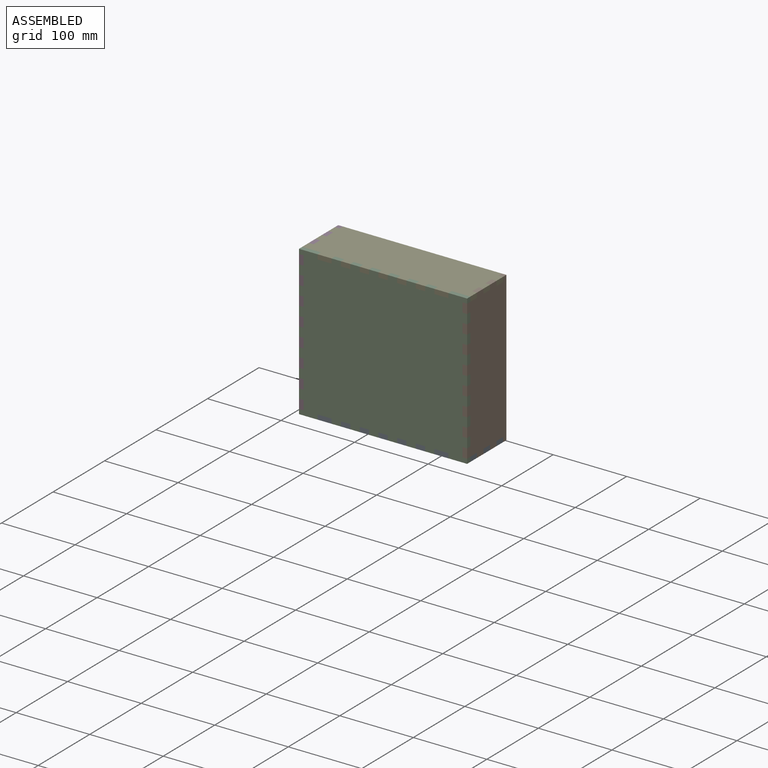
[diagram: assembled view]
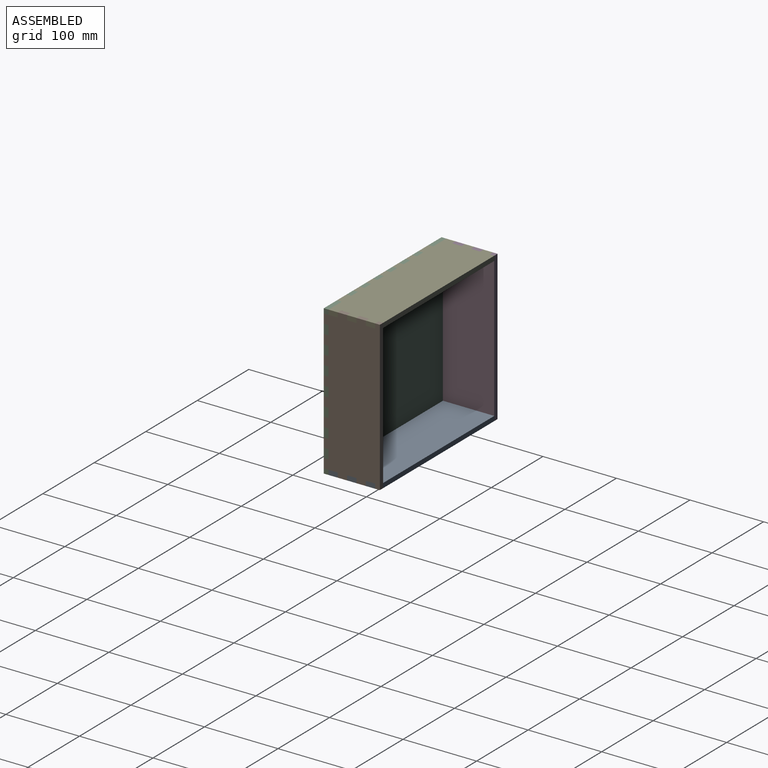
[diagram: assembled view, second angle]
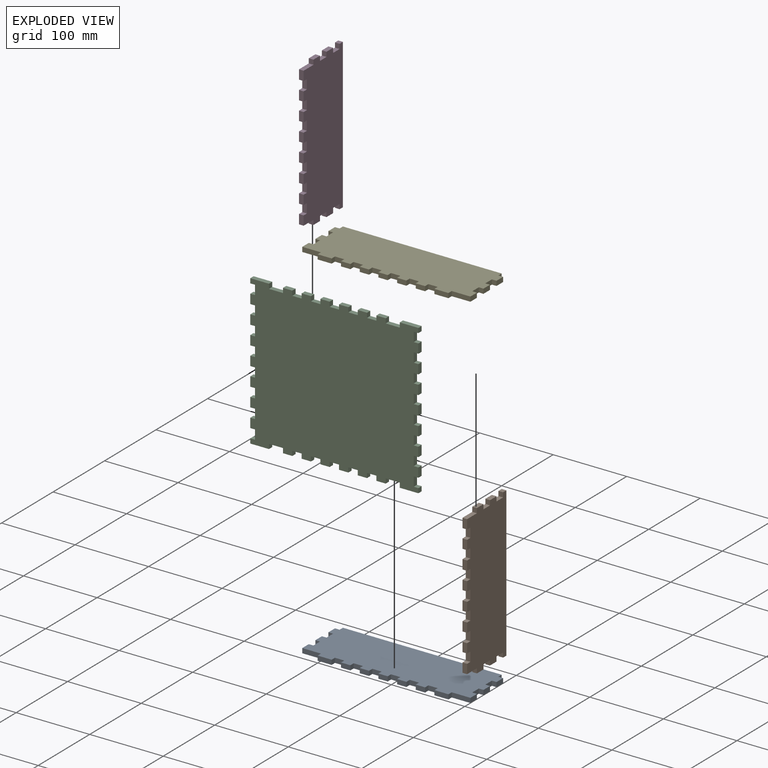
[diagram: exploded view]
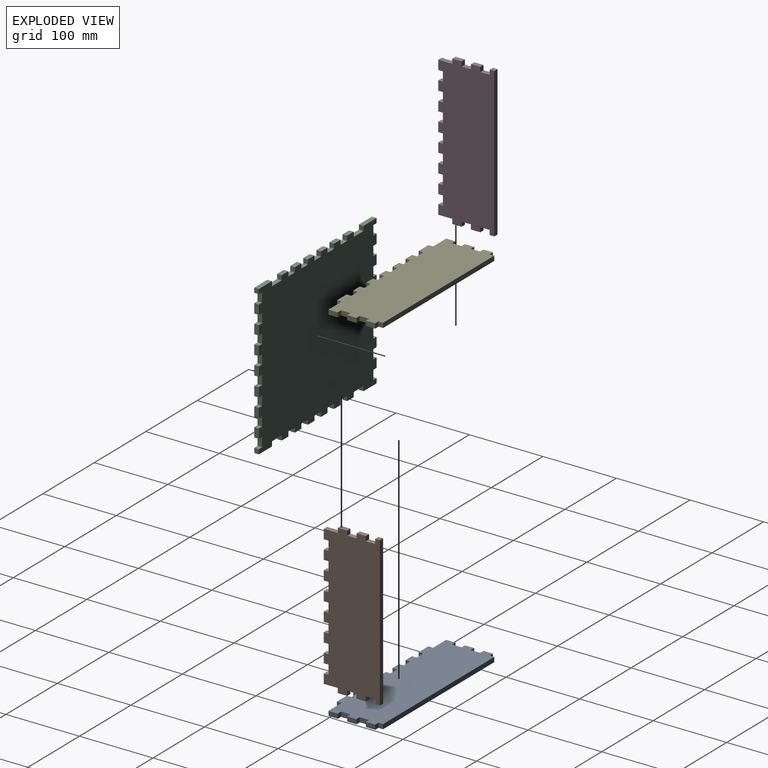
[diagram: exploded view, second angle]
ASSEMBLY  parts=5 mates=4
PART A: 54 faces, bbox 228.6x76.2x6.4 mm
  f0: plane 6.35x6.35mm, normal (1,0,0), area 40.3mm2, adj f1,f51,f52,f53
  f1: plane 25.4x6.35mm, normal (0,-1,0), area 161.3mm2, adj f0,f2,f52,f53
  f2: plane 12.7x6.35mm, normal (1,0,0), area 80.6mm2, adj f1,f3,f52,f53
  f3: plane 6.35x6.35mm, normal (0,1,0), area 40.3mm2, adj f2,f4,f52,f53
  f4: plane 12.7x6.35mm, normal (1,0,0), area 80.6mm2, adj f3,f5,f52,f53
  f5: plane 6.35x6.35mm, normal (0,-1,0), area 40.3mm2, adj f4,f6,f52,f53
  f6: plane 12.7x6.35mm, normal (1,0,0), area 80.6mm2, adj f5,f7,f52,f53
  f7: plane 6.35x6.35mm, normal (0,1,0), area 40.3mm2, adj f6,f8,f52,f53
  f8: plane 12.7x6.35mm, normal (1,0,0), area 80.6mm2, adj f7,f9,f52,f53
  f9: plane 6.35x6.35mm, normal (0,-1,0), area 40.3mm2, adj f8,f10,f52,f53
  f10: plane 12.7x6.35mm, normal (1,0,0), area 80.6mm2, adj f9,f11,f52,f53
  f11: plane 6.35x6.35mm, normal (0,1,0), area 40.3mm2, adj f10,f12,f52,f53
  f12: plane 6.35x6.35mm, normal (1,0,0), area 40.3mm2, adj f11,f13,f52,f53
  f13: plane 215.9x6.35mm, normal (0,1,0), area 1371mm2, adj f12,f14,f52,f53
  f14: plane 6.35x6.35mm, normal (-1,0,0), area 40.3mm2, adj f13,f15,f52,f53
  f15: plane 6.35x6.35mm, normal (0,1,0), area 40.3mm2, adj f14,f16,f52,f53
  f16: plane 12.7x6.35mm, normal (-1,0,0), area 80.6mm2, adj f15,f17,f52,f53
  f17: plane 6.35x6.35mm, normal (0,-1,0), area 40.3mm2, adj f16,f18,f52,f53
  f18: plane 12.7x6.35mm, normal (-1,0,0), area 80.6mm2, adj f17,f19,f52,f53
  f19: plane 6.35x6.35mm, normal (0,1,0), area 40.3mm2, adj f18,f20,f52,f53
  f20: plane 12.7x6.35mm, normal (-1,0,0), area 80.6mm2, adj f19,f21,f52,f53
  f21: plane 6.35x6.35mm, normal (0,-1,0), area 40.3mm2, adj f20,f22,f52,f53
  f22: plane 12.7x6.35mm, normal (-1,0,0), area 80.6mm2, adj f21,f23,f52,f53
  f23: plane 6.35x6.35mm, normal (0,1,0), area 40.3mm2, adj f22,f24,f52,f53
  f24: plane 12.7x6.35mm, normal (-1,0,0), area 80.6mm2, adj f23,f25,f52,f53
  f25: plane 25.4x6.35mm, normal (0,-1,0), area 161.3mm2, adj f24,f26,f52,f53
  f26: plane 6.35x6.35mm, normal (-1,0,0), area 40.3mm2, adj f25,f27,f52,f53
  f27: plane 19.05x6.35mm, normal (0,-1,0), area 121mm2, adj f26,f28,f52,f53
  f28: plane 6.35x6.35mm, normal (1,0,0), area 40.3mm2, adj f27,f29,f52,f53
  f29: plane 12.7x6.35mm, normal (0,-1,0), area 80.6mm2, adj f28,f30,f52,f53
  f30: plane 6.35x6.35mm, normal (-1,0,0), area 40.3mm2, adj f29,f31,f52,f53
  f31: plane 12.7x6.35mm, normal (0,-1,0), area 80.6mm2, adj f30,f32,f52,f53
  f32: plane 6.35x6.35mm, normal (1,0,0), area 40.3mm2, adj f31,f33,f52,f53
  f33: plane 12.7x6.35mm, normal (0,-1,0), area 80.6mm2, adj f32,f34,f52,f53
  f34: plane 6.35x6.35mm, normal (-1,0,0), area 40.3mm2, adj f33,f35,f52,f53
  f35: plane 12.7x6.35mm, normal (0,-1,0), area 80.6mm2, adj f34,f36,f52,f53
  f36: plane 6.35x6.35mm, normal (1,0,0), area 40.3mm2, adj f35,f37,f52,f53
  f37: plane 12.7x6.35mm, normal (0,-1,0), area 80.6mm2, adj f36,f38,f52,f53
  f38: plane 6.35x6.35mm, normal (-1,0,0), area 40.3mm2, adj f37,f39,f52,f53
  f39: plane 12.7x6.35mm, normal (0,-1,0), area 80.6mm2, adj f38,f40,f52,f53
  f40: plane 6.35x6.35mm, normal (1,0,0), area 40.3mm2, adj f39,f41,f52,f53
  f41: plane 12.7x6.35mm, normal (0,-1,0), area 80.6mm2, adj f40,f42,f52,f53
  f42: plane 6.35x6.35mm, normal (-1,0,0), area 40.3mm2, adj f41,f43,f52,f53
  f43: plane 12.7x6.35mm, normal (0,-1,0), area 80.6mm2, adj f42,f44,f52,f53
  f44: plane 6.35x6.35mm, normal (1,0,0), area 40.3mm2, adj f43,f45,f52,f53
  f45: plane 12.7x6.35mm, normal (0,-1,0), area 80.6mm2, adj f44,f46,f52,f53
  f46: plane 6.35x6.35mm, normal (-1,0,0), area 40.3mm2, adj f45,f47,f52,f53
  f47: plane 12.7x6.35mm, normal (0,-1,0), area 80.6mm2, adj f46,f48,f52,f53
  f48: plane 6.35x6.35mm, normal (1,0,0), area 40.3mm2, adj f47,f49,f52,f53
  f49: plane 12.7x6.35mm, normal (0,-1,0), area 80.6mm2, adj f48,f50,f52,f53
  f50: plane 6.35x6.35mm, normal (-1,0,0), area 40.3mm2, adj f49,f51,f52,f53
  f51: plane 19.05x6.35mm, normal (0,-1,0), area 121mm2, adj f0,f50,f52,f53
  f52: plane 228.6x76.2mm, normal (0,0,1), area 16209.6mm2, adj f0,f1,f2,f3,f4,f5,f6,f7
  f53: plane 228.6x76.2mm, normal (0,0,-1), area 16209.6mm2, adj f0,f1,f2,f3,f4,f5,f6,f7
PART B: 54 faces, bbox 203.2x76.2x6.4 mm
  f0: plane 12.7x6.35mm, normal (0,-1,0), area 80.6mm2, adj f1,f51,f52,f53
  f1: plane 6.35x6.35mm, normal (-1,0,0), area 40.3mm2, adj f0,f2,f52,f53
  f2: plane 12.7x6.35mm, normal (0,-1,0), area 80.6mm2, adj f1,f3,f52,f53
  f3: plane 6.35x6.35mm, normal (1,0,0), area 40.3mm2, adj f2,f4,f52,f53
  f4: plane 12.7x6.35mm, normal (0,-1,0), area 80.6mm2, adj f3,f5,f52,f53
  f5: plane 6.35x6.35mm, normal (-1,0,0), area 40.3mm2, adj f4,f6,f52,f53
  f6: plane 12.7x6.35mm, normal (0,-1,0), area 80.6mm2, adj f5,f7,f52,f53
  f7: plane 19.05x6.35mm, normal (1,0,0), area 121mm2, adj f6,f8,f52,f53
  f8: plane 6.35x6.35mm, normal (0,-1,0), area 40.3mm2, adj f7,f9,f52,f53
  f9: plane 12.7x6.35mm, normal (1,0,0), area 80.6mm2, adj f8,f10,f52,f53
  f10: plane 6.35x6.35mm, normal (0,1,0), area 40.3mm2, adj f9,f11,f52,f53
  f11: plane 12.7x6.35mm, normal (1,0,0), area 80.6mm2, adj f10,f12,f52,f53
  f12: plane 6.35x6.35mm, normal (0,-1,0), area 40.3mm2, adj f11,f13,f52,f53
  f13: plane 12.7x6.35mm, normal (1,0,0), area 80.6mm2, adj f12,f14,f52,f53
  f14: plane 6.35x6.35mm, normal (0,1,0), area 40.3mm2, adj f13,f15,f52,f53
  f15: plane 12.7x6.35mm, normal (1,0,0), area 80.6mm2, adj f14,f16,f52,f53
  f16: plane 6.35x6.35mm, normal (0,-1,0), area 40.3mm2, adj f15,f17,f52,f53
  f17: plane 6.35x6.35mm, normal (1,0,0), area 40.3mm2, adj f16,f18,f52,f53
  f18: plane 203.2x6.35mm, normal (0,1,0), area 1290.3mm2, adj f17,f19,f52,f53
  f19: plane 6.35x6.35mm, normal (-1,0,0), area 40.3mm2, adj f18,f20,f52,f53
  f20: plane 6.35x6.35mm, normal (0,-1,0), area 40.3mm2, adj f19,f21,f52,f53
  f21: plane 12.7x6.35mm, normal (-1,0,0), area 80.6mm2, adj f20,f22,f52,f53
  f22: plane 6.35x6.35mm, normal (0,1,0), area 40.3mm2, adj f21,f23,f52,f53
  f23: plane 12.7x6.35mm, normal (-1,0,0), area 80.6mm2, adj f22,f24,f52,f53
  f24: plane 6.35x6.35mm, normal (0,-1,0), area 40.3mm2, adj f23,f25,f52,f53
  f25: plane 12.7x6.35mm, normal (-1,0,0), area 80.6mm2, adj f24,f26,f52,f53
  f26: plane 6.35x6.35mm, normal (0,1,0), area 40.3mm2, adj f25,f27,f52,f53
  f27: plane 12.7x6.35mm, normal (-1,0,0), area 80.6mm2, adj f26,f28,f52,f53
  f28: plane 6.35x6.35mm, normal (0,-1,0), area 40.3mm2, adj f27,f29,f52,f53
  f29: plane 19.05x6.35mm, normal (-1,0,0), area 121mm2, adj f28,f30,f52,f53
  f30: plane 12.7x6.35mm, normal (0,-1,0), area 80.6mm2, adj f29,f31,f52,f53
  f31: plane 6.35x6.35mm, normal (1,0,0), area 40.3mm2, adj f30,f32,f52,f53
  f32: plane 12.7x6.35mm, normal (0,-1,0), area 80.6mm2, adj f31,f33,f52,f53
  f33: plane 6.35x6.35mm, normal (-1,0,0), area 40.3mm2, adj f32,f34,f52,f53
  f34: plane 12.7x6.35mm, normal (0,-1,0), area 80.6mm2, adj f33,f35,f52,f53
  f35: plane 6.35x6.35mm, normal (1,0,0), area 40.3mm2, adj f34,f36,f52,f53
  f36: plane 12.7x6.35mm, normal (0,-1,0), area 80.6mm2, adj f35,f37,f52,f53
  f37: plane 6.35x6.35mm, normal (-1,0,0), area 40.3mm2, adj f36,f38,f52,f53
  f38: plane 12.7x6.35mm, normal (0,-1,0), area 80.6mm2, adj f37,f39,f52,f53
  f39: plane 6.35x6.35mm, normal (1,0,0), area 40.3mm2, adj f38,f40,f52,f53
  f40: plane 12.7x6.35mm, normal (0,-1,0), area 80.6mm2, adj f39,f41,f52,f53
  f41: plane 6.35x6.35mm, normal (-1,0,0), area 40.3mm2, adj f40,f42,f52,f53
  f42: plane 12.7x6.35mm, normal (0,-1,0), area 80.6mm2, adj f41,f43,f52,f53
  f43: plane 6.35x6.35mm, normal (1,0,0), area 40.3mm2, adj f42,f44,f52,f53
  f44: plane 12.7x6.35mm, normal (0,-1,0), area 80.6mm2, adj f43,f45,f52,f53
  f45: plane 6.35x6.35mm, normal (-1,0,0), area 40.3mm2, adj f44,f46,f52,f53
  f46: plane 12.7x6.35mm, normal (0,-1,0), area 80.6mm2, adj f45,f47,f52,f53
  f47: plane 6.35x6.35mm, normal (1,0,0), area 40.3mm2, adj f46,f48,f52,f53
  f48: plane 12.7x6.35mm, normal (0,-1,0), area 80.6mm2, adj f47,f49,f52,f53
  f49: plane 6.35x6.35mm, normal (-1,0,0), area 40.3mm2, adj f48,f50,f52,f53
  f50: plane 12.7x6.35mm, normal (0,-1,0), area 80.6mm2, adj f49,f51,f52,f53
  f51: plane 6.35x6.35mm, normal (1,0,0), area 40.3mm2, adj f0,f50,f52,f53
  f52: plane 203.2x76.2mm, normal (0,0,1), area 14354.8mm2, adj f0,f1,f2,f3,f4,f5,f6,f7
  f53: plane 203.2x76.2mm, normal (0,0,-1), area 14354.8mm2, adj f0,f1,f2,f3,f4,f5,f6,f7
PART C: 126 faces, bbox 228.6x203.2x6.4 mm
  f0: plane 6.35x6.35mm, normal (0,1,0), area 40.3mm2, adj f1,f123,f124,f125
  f1: plane 12.7x6.35mm, normal (1,0,0), area 80.6mm2, adj f0,f2,f124,f125
  f2: plane 6.35x6.35mm, normal (0,-1,0), area 40.3mm2, adj f1,f3,f124,f125
  f3: plane 12.7x6.35mm, normal (1,0,0), area 80.6mm2, adj f2,f4,f124,f125
  f4: plane 6.35x6.35mm, normal (0,1,0), area 40.3mm2, adj f3,f5,f124,f125
  f5: plane 12.7x6.35mm, normal (1,0,0), area 80.6mm2, adj f4,f6,f124,f125
  f6: plane 6.35x6.35mm, normal (0,-1,0), area 40.3mm2, adj f5,f7,f124,f125
  f7: plane 12.7x6.35mm, normal (1,0,0), area 80.6mm2, adj f6,f8,f124,f125
  f8: plane 6.35x6.35mm, normal (0,1,0), area 40.3mm2, adj f7,f9,f124,f125
  f9: plane 12.7x6.35mm, normal (1,0,0), area 80.6mm2, adj f8,f10,f124,f125
  f10: plane 6.35x6.35mm, normal (0,-1,0), area 40.3mm2, adj f9,f11,f124,f125
  f11: plane 12.7x6.35mm, normal (1,0,0), area 80.6mm2, adj f10,f12,f124,f125
  f12: plane 6.35x6.35mm, normal (0,1,0), area 40.3mm2, adj f11,f13,f124,f125
  f13: plane 12.7x6.35mm, normal (1,0,0), area 80.6mm2, adj f12,f14,f124,f125
  f14: plane 6.35x6.35mm, normal (0,-1,0), area 40.3mm2, adj f13,f15,f124,f125
  f15: plane 12.7x6.35mm, normal (1,0,0), area 80.6mm2, adj f14,f16,f124,f125
  f16: plane 6.35x6.35mm, normal (0,1,0), area 40.3mm2, adj f15,f17,f124,f125
  f17: plane 12.7x6.35mm, normal (1,0,0), area 80.6mm2, adj f16,f18,f124,f125
  f18: plane 6.35x6.35mm, normal (0,-1,0), area 40.3mm2, adj f17,f19,f124,f125
  f19: plane 12.7x6.35mm, normal (1,0,0), area 80.6mm2, adj f18,f20,f124,f125
  f20: plane 6.35x6.35mm, normal (0,1,0), area 40.3mm2, adj f19,f21,f124,f125
  f21: plane 12.7x6.35mm, normal (1,0,0), area 80.6mm2, adj f20,f22,f124,f125
  f22: plane 6.35x6.35mm, normal (0,-1,0), area 40.3mm2, adj f21,f23,f124,f125
  f23: plane 12.7x6.35mm, normal (1,0,0), area 80.6mm2, adj f22,f24,f124,f125
  f24: plane 6.35x6.35mm, normal (0,1,0), area 40.3mm2, adj f23,f25,f124,f125
  f25: plane 12.7x6.35mm, normal (1,0,0), area 80.6mm2, adj f24,f26,f124,f125
  f26: plane 6.35x6.35mm, normal (0,-1,0), area 40.3mm2, adj f25,f27,f124,f125
  f27: plane 12.7x6.35mm, normal (1,0,0), area 80.6mm2, adj f26,f28,f124,f125
  f28: plane 6.35x6.35mm, normal (0,1,0), area 40.3mm2, adj f27,f29,f124,f125
  f29: plane 12.7x6.35mm, normal (1,0,0), area 80.6mm2, adj f28,f30,f124,f125
  f30: plane 6.35x6.35mm, normal (0,-1,0), area 40.3mm2, adj f29,f31,f124,f125
  f31: plane 6.35x6.35mm, normal (1,0,0), area 40.3mm2, adj f30,f32,f124,f125
  f32: plane 25.4x6.35mm, normal (0,1,0), area 161.3mm2, adj f31,f33,f124,f125
  f33: plane 6.35x6.35mm, normal (-1,0,0), area 40.3mm2, adj f32,f34,f124,f125
  f34: plane 19.05x6.35mm, normal (0,1,0), area 121mm2, adj f33,f35,f124,f125
  f35: plane 6.35x6.35mm, normal (1,0,0), area 40.3mm2, adj f34,f36,f124,f125
  f36: plane 12.7x6.35mm, normal (0,1,0), area 80.6mm2, adj f35,f37,f124,f125
  f37: plane 6.35x6.35mm, normal (-1,0,0), area 40.3mm2, adj f36,f38,f124,f125
  f38: plane 12.7x6.35mm, normal (0,1,0), area 80.6mm2, adj f37,f39,f124,f125
  f39: plane 6.35x6.35mm, normal (1,0,0), area 40.3mm2, adj f38,f40,f124,f125
  f40: plane 12.7x6.35mm, normal (0,1,0), area 80.6mm2, adj f39,f41,f124,f125
  f41: plane 6.35x6.35mm, normal (-1,0,0), area 40.3mm2, adj f40,f42,f124,f125
  f42: plane 12.7x6.35mm, normal (0,1,0), area 80.6mm2, adj f41,f43,f124,f125
  f43: plane 6.35x6.35mm, normal (1,0,0), area 40.3mm2, adj f42,f44,f124,f125
  f44: plane 12.7x6.35mm, normal (0,1,0), area 80.6mm2, adj f43,f45,f124,f125
  f45: plane 6.35x6.35mm, normal (-1,0,0), area 40.3mm2, adj f44,f46,f124,f125
  f46: plane 12.7x6.35mm, normal (0,1,0), area 80.6mm2, adj f45,f47,f124,f125
  f47: plane 6.35x6.35mm, normal (1,0,0), area 40.3mm2, adj f46,f48,f124,f125
  f48: plane 12.7x6.35mm, normal (0,1,0), area 80.6mm2, adj f47,f49,f124,f125
  f49: plane 6.35x6.35mm, normal (-1,0,0), area 40.3mm2, adj f48,f50,f124,f125
  f50: plane 12.7x6.35mm, normal (0,1,0), area 80.6mm2, adj f49,f51,f124,f125
  f51: plane 6.35x6.35mm, normal (1,0,0), area 40.3mm2, adj f50,f52,f124,f125
  f52: plane 12.7x6.35mm, normal (0,1,0), area 80.6mm2, adj f51,f53,f124,f125
  f53: plane 6.35x6.35mm, normal (-1,0,0), area 40.3mm2, adj f52,f54,f124,f125
  f54: plane 12.7x6.35mm, normal (0,1,0), area 80.6mm2, adj f53,f55,f124,f125
  f55: plane 6.35x6.35mm, normal (1,0,0), area 40.3mm2, adj f54,f56,f124,f125
  f56: plane 12.7x6.35mm, normal (0,1,0), area 80.6mm2, adj f55,f57,f124,f125
  f57: plane 6.35x6.35mm, normal (-1,0,0), area 40.3mm2, adj f56,f58,f124,f125
  f58: plane 19.05x6.35mm, normal (0,1,0), area 121mm2, adj f57,f59,f124,f125
  f59: plane 6.35x6.35mm, normal (1,0,0), area 40.3mm2, adj f58,f60,f124,f125
  f60: plane 25.4x6.35mm, normal (0,1,0), area 161.3mm2, adj f59,f61,f124,f125
  f61: plane 6.35x6.35mm, normal (-1,0,0), area 40.3mm2, adj f60,f62,f124,f125
  f62: plane 6.35x6.35mm, normal (0,-1,0), area 40.3mm2, adj f61,f63,f124,f125
  f63: plane 12.7x6.35mm, normal (-1,0,0), area 80.6mm2, adj f62,f64,f124,f125
  f64: plane 6.35x6.35mm, normal (0,1,0), area 40.3mm2, adj f63,f65,f124,f125
  f65: plane 12.7x6.35mm, normal (-1,0,0), area 80.6mm2, adj f64,f66,f124,f125
  f66: plane 6.35x6.35mm, normal (0,-1,0), area 40.3mm2, adj f65,f67,f124,f125
  f67: plane 12.7x6.35mm, normal (-1,0,0), area 80.6mm2, adj f66,f68,f124,f125
  f68: plane 6.35x6.35mm, normal (0,1,0), area 40.3mm2, adj f67,f69,f124,f125
  f69: plane 12.7x6.35mm, normal (-1,0,0), area 80.6mm2, adj f68,f70,f124,f125
  f70: plane 6.35x6.35mm, normal (0,-1,0), area 40.3mm2, adj f69,f71,f124,f125
  f71: plane 12.7x6.35mm, normal (-1,0,0), area 80.6mm2, adj f70,f72,f124,f125
  f72: plane 6.35x6.35mm, normal (0,1,0), area 40.3mm2, adj f71,f73,f124,f125
  f73: plane 12.7x6.35mm, normal (-1,0,0), area 80.6mm2, adj f72,f74,f124,f125
  f74: plane 6.35x6.35mm, normal (0,-1,0), area 40.3mm2, adj f73,f75,f124,f125
  f75: plane 12.7x6.35mm, normal (-1,0,0), area 80.6mm2, adj f74,f76,f124,f125
  f76: plane 6.35x6.35mm, normal (0,1,0), area 40.3mm2, adj f75,f77,f124,f125
  f77: plane 12.7x6.35mm, normal (-1,0,0), area 80.6mm2, adj f76,f78,f124,f125
  f78: plane 6.35x6.35mm, normal (0,-1,0), area 40.3mm2, adj f77,f79,f124,f125
  f79: plane 12.7x6.35mm, normal (-1,0,0), area 80.6mm2, adj f78,f80,f124,f125
  f80: plane 6.35x6.35mm, normal (0,1,0), area 40.3mm2, adj f79,f81,f124,f125
  f81: plane 12.7x6.35mm, normal (-1,0,0), area 80.6mm2, adj f80,f82,f124,f125
  f82: plane 6.35x6.35mm, normal (0,-1,0), area 40.3mm2, adj f81,f83,f124,f125
  f83: plane 12.7x6.35mm, normal (-1,0,0), area 80.6mm2, adj f82,f84,f124,f125
  f84: plane 6.35x6.35mm, normal (0,1,0), area 40.3mm2, adj f83,f85,f124,f125
  f85: plane 12.7x6.35mm, normal (-1,0,0), area 80.6mm2, adj f84,f86,f124,f125
  f86: plane 6.35x6.35mm, normal (0,-1,0), area 40.3mm2, adj f85,f87,f124,f125
  f87: plane 12.7x6.35mm, normal (-1,0,0), area 80.6mm2, adj f86,f88,f124,f125
  f88: plane 6.35x6.35mm, normal (0,1,0), area 40.3mm2, adj f87,f89,f124,f125
  f89: plane 12.7x6.35mm, normal (-1,0,0), area 80.6mm2, adj f88,f90,f124,f125
  f90: plane 6.35x6.35mm, normal (0,-1,0), area 40.3mm2, adj f89,f91,f124,f125
  f91: plane 12.7x6.35mm, normal (-1,0,0), area 80.6mm2, adj f90,f92,f124,f125
  f92: plane 6.35x6.35mm, normal (0,1,0), area 40.3mm2, adj f91,f93,f124,f125
  f93: plane 6.35x6.35mm, normal (-1,0,0), area 40.3mm2, adj f92,f94,f124,f125
  f94: plane 25.4x6.35mm, normal (0,-1,0), area 161.3mm2, adj f93,f95,f124,f125
  f95: plane 6.35x6.35mm, normal (1,0,0), area 40.3mm2, adj f94,f96,f124,f125
  f96: plane 19.05x6.35mm, normal (0,-1,0), area 121mm2, adj f95,f97,f124,f125
  f97: plane 6.35x6.35mm, normal (-1,0,0), area 40.3mm2, adj f96,f98,f124,f125
  f98: plane 12.7x6.35mm, normal (0,-1,0), area 80.6mm2, adj f97,f99,f124,f125
  f99: plane 6.35x6.35mm, normal (1,0,0), area 40.3mm2, adj f98,f100,f124,f125
  f100: plane 12.7x6.35mm, normal (0,-1,0), area 80.6mm2, adj f99,f101,f124,f125
  f101: plane 6.35x6.35mm, normal (-1,0,0), area 40.3mm2, adj f100,f102,f124,f125
  f102: plane 12.7x6.35mm, normal (0,-1,0), area 80.6mm2, adj f101,f103,f124,f125
  f103: plane 6.35x6.35mm, normal (1,0,0), area 40.3mm2, adj f102,f104,f124,f125
  f104: plane 12.7x6.35mm, normal (0,-1,0), area 80.6mm2, adj f103,f105,f124,f125
  f105: plane 6.35x6.35mm, normal (-1,0,0), area 40.3mm2, adj f104,f106,f124,f125
  f106: plane 12.7x6.35mm, normal (0,-1,0), area 80.6mm2, adj f105,f107,f124,f125
  f107: plane 6.35x6.35mm, normal (1,0,0), area 40.3mm2, adj f106,f108,f124,f125
  f108: plane 12.7x6.35mm, normal (0,-1,0), area 80.6mm2, adj f107,f109,f124,f125
  f109: plane 6.35x6.35mm, normal (-1,0,0), area 40.3mm2, adj f108,f110,f124,f125
  f110: plane 12.7x6.35mm, normal (0,-1,0), area 80.6mm2, adj f109,f111,f124,f125
  f111: plane 6.35x6.35mm, normal (1,0,0), area 40.3mm2, adj f110,f112,f124,f125
  f112: plane 12.7x6.35mm, normal (0,-1,0), area 80.6mm2, adj f111,f113,f124,f125
  f113: plane 6.35x6.35mm, normal (-1,0,0), area 40.3mm2, adj f112,f114,f124,f125
  f114: plane 12.7x6.35mm, normal (0,-1,0), area 80.6mm2, adj f113,f115,f124,f125
  f115: plane 6.35x6.35mm, normal (1,0,0), area 40.3mm2, adj f114,f116,f124,f125
  f116: plane 12.7x6.35mm, normal (0,-1,0), area 80.6mm2, adj f115,f117,f124,f125
  f117: plane 6.35x6.35mm, normal (-1,0,0), area 40.3mm2, adj f116,f118,f124,f125
  f118: plane 12.7x6.35mm, normal (0,-1,0), area 80.6mm2, adj f117,f119,f124,f125
  f119: plane 6.35x6.35mm, normal (1,0,0), area 40.3mm2, adj f118,f120,f124,f125
  f120: plane 19.05x6.35mm, normal (0,-1,0), area 121mm2, adj f119,f121,f124,f125
  f121: plane 6.35x6.35mm, normal (-1,0,0), area 40.3mm2, adj f120,f122,f124,f125
  f122: plane 25.4x6.35mm, normal (0,-1,0), area 161.3mm2, adj f121,f123,f124,f125
  f123: plane 6.35x6.35mm, normal (1,0,0), area 40.3mm2, adj f0,f122,f124,f125
  f124: plane 228.6x203.2mm, normal (0,0,1), area 43870.9mm2, adj f0,f1,f2,f3,f4,f5,f6,f7
  f125: plane 228.6x203.2mm, normal (0,0,-1), area 43870.9mm2, adj f0,f1,f2,f3,f4,f5,f6,f7
PART D: same geometry as B
PART E: same geometry as A
PLACE A rot(axis=(0.19,0.76,-0.62),0deg) t=(77.17,-221.15,-181.48)mm
PLACE B rot(axis=(0,1,0),90deg) t=(299.42,-221.15,21.72)mm
PLACE C rot(axis=(-1,0,0),90deg) t=(77.17,-303.7,-181.48)mm
PLACE D rot(axis=(0,1,0),90deg) t=(77.17,-221.15,21.72)mm
PLACE E rot(axis=(0.29,-0.18,-0.94),0deg) t=(77.17,-221.15,15.37)mm
MATE fastened D.f52 <-> C.f63  axis (1,0,0) through (83.52,-303.7,-168.78)mm
MATE fastened A.f52 <-> C.f58  axis (0,0,1) through (112.09,-303.7,-175.13)mm
MATE fastened B.f53 <-> C.f29  axis (-1,0,0) through (299.42,-303.7,-168.78)mm
MATE fastened C.f125 <-> E.f43  axis (0,-1,0) through (216.87,-303.7,15.37)mm
